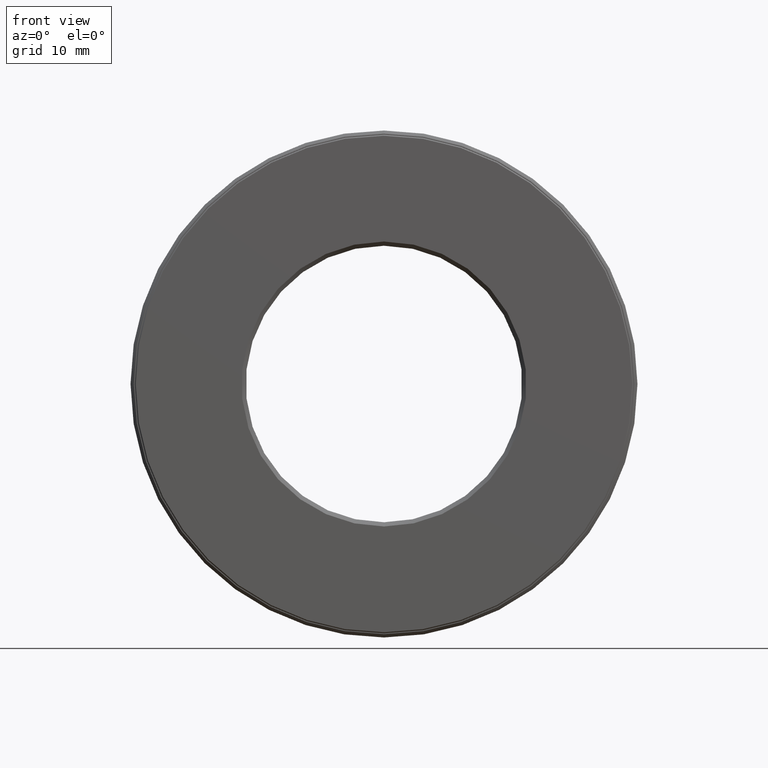
[diagram: clean part render]
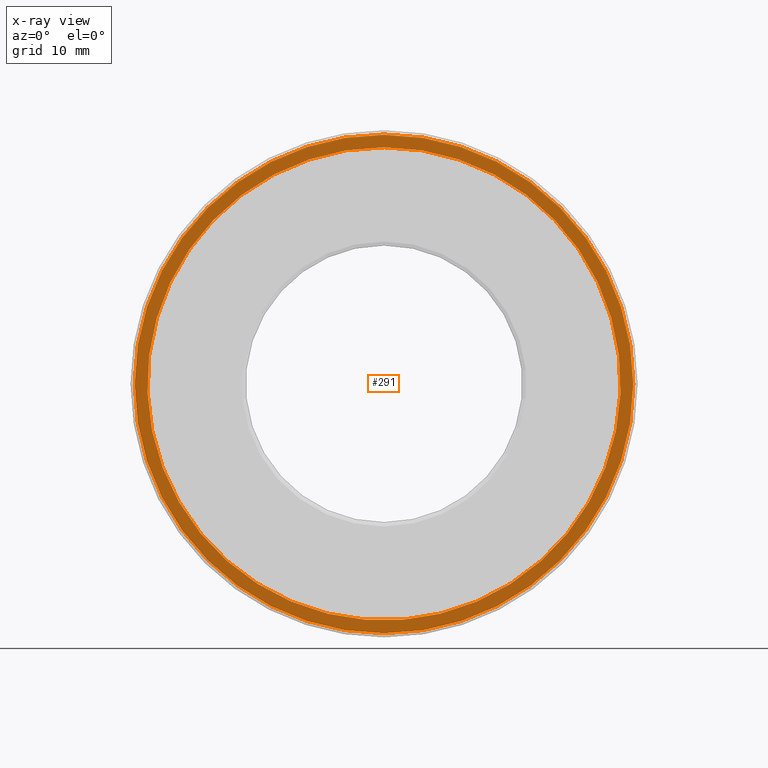
[diagram: x-ray — body ghosted, one internal face saturated and labeled with its STEP entity id]
A machine part, front view, then the same camera in x-ray: the body is ghosted and one INTERNAL B-rep face — a face not visible from any outside direction — is saturated and labeled: STEP entity #291.
In plain terms, the highlighted planar face has unit normal (-0, 1, 0).
Its self-contained STEP definition (entity closure, byte-faithful):
#17 = CARTESIAN_POINT ( 'NONE',  ( 0.0000000000000000000, 0.6524999999999997500, 1.183125000000000000 ) ) ;
#63 = FACE_OUTER_BOUND ( 'NONE', #507, .T. ) ;
#83 = ORIENTED_EDGE ( 'NONE', *, *, #424, .F. ) ;
#152 = PLANE ( 'NONE',  #500 ) ;
#157 = EDGE_CURVE ( 'NONE', #188, #188, #391, .T. ) ;
#181 = AXIS2_PLACEMENT_3D ( 'NONE', #398, #355, #539 ) ;
#188 = VERTEX_POINT ( 'NONE', #246 ) ;
#195 = DIRECTION ( 'NONE',  ( 0.0000000000000000000, 0.0000000000000000000, 1.000000000000000000 ) ) ;
#205 = DIRECTION ( 'NONE',  ( -0.0000000000000000000, 1.000000000000000000, 0.0000000000000000000 ) ) ;
#219 = FACE_BOUND ( 'NONE', #603, .T. ) ;
#229 = ORIENTED_EDGE ( 'NONE', *, *, #157, .T. ) ;
#236 = CARTESIAN_POINT ( 'NONE',  ( 0.0000000000000000000, 0.6524999999999997500, 0.0000000000000000000 ) ) ;
#240 = VERTEX_POINT ( 'NONE', #17 ) ;
#245 = CARTESIAN_POINT ( 'NONE',  ( 0.0000000000000000000, 0.6524999999999997500, 0.0000000000000000000 ) ) ;
#246 = CARTESIAN_POINT ( 'NONE',  ( 0.0000000000000000000, 0.6524999999999997500, 1.123125000000000200 ) ) ;
#291 = ADVANCED_FACE ( 'NONE', ( #63, #219 ), #152, .F. ) ;
#292 = CIRCLE ( 'NONE', #181, 1.183125000000000000 ) ;
#355 = DIRECTION ( 'NONE',  ( -0.0000000000000000000, 1.000000000000000000, -0.0000000000000000000 ) ) ;
#356 = AXIS2_PLACEMENT_3D ( 'NONE', #236, #566, #195 ) ;
#391 = CIRCLE ( 'NONE', #356, 1.123125000000000200 ) ;
#398 = CARTESIAN_POINT ( 'NONE',  ( 0.0000000000000000000, 0.6524999999999997500, 0.0000000000000000000 ) ) ;
#424 = EDGE_CURVE ( 'NONE', #240, #240, #292, .T. ) ;
#500 = AXIS2_PLACEMENT_3D ( 'NONE', #245, #205, #522 ) ;
#507 = EDGE_LOOP ( 'NONE', ( #83 ) ) ;
#522 = DIRECTION ( 'NONE',  ( 0.0000000000000000000, 0.0000000000000000000, 1.000000000000000000 ) ) ;
#539 = DIRECTION ( 'NONE',  ( 0.0000000000000000000, 0.0000000000000000000, 1.000000000000000000 ) ) ;
#566 = DIRECTION ( 'NONE',  ( -0.0000000000000000000, 1.000000000000000000, -0.0000000000000000000 ) ) ;
#603 = EDGE_LOOP ( 'NONE', ( #229 ) ) ;